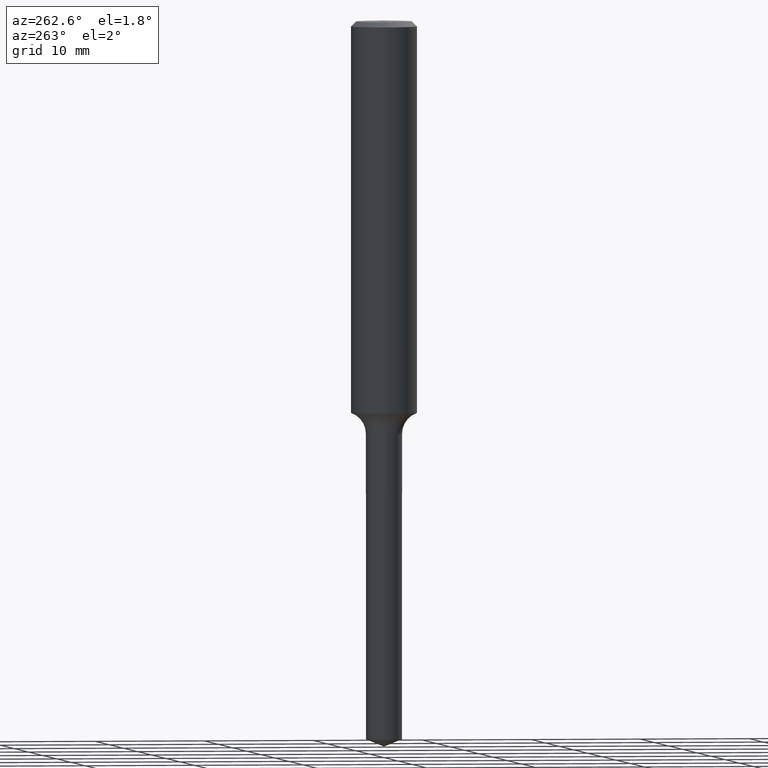
[diagram: clean part render]
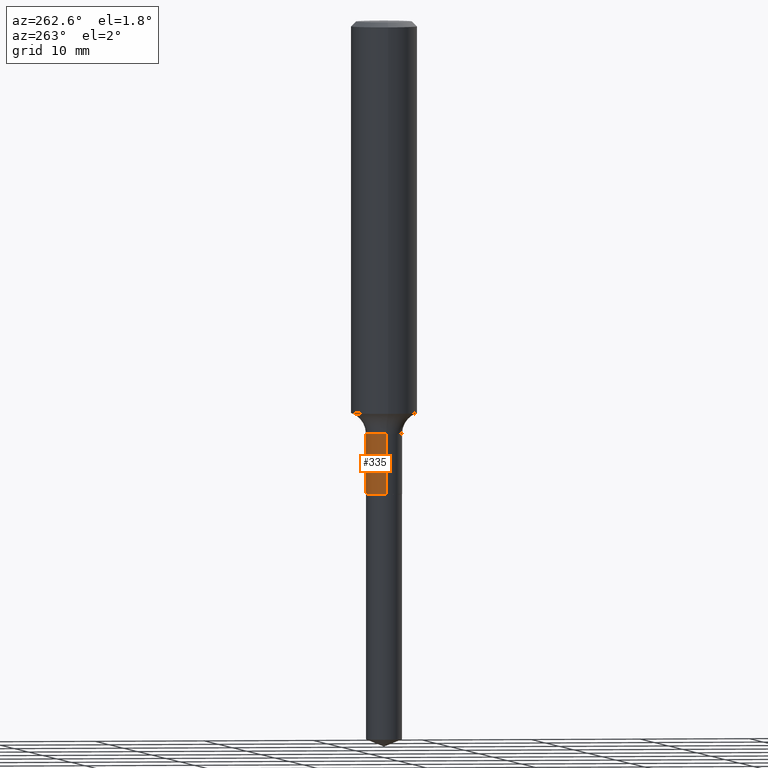
[diagram: same view with one face highlighted and labeled with its STEP entity id]
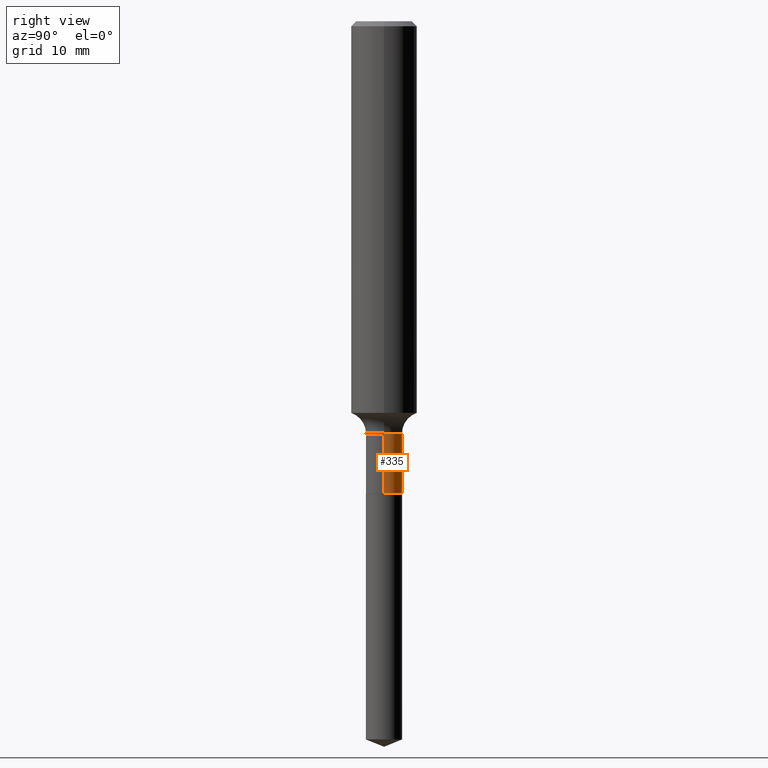
[diagram: same view with one face highlighted and labeled with its STEP entity id]
A machine part, auxiliary view. The second image highlights one B-rep face of the part: STEP entity #335.
A second angle (right view) of the same face is appended — the face is thin or edge-on in the first view.
In plain terms, the highlighted cylindrical surface (edge-blend (fillet) strip) has radius 1.6497 mm, axis along (-0, 0, 1).
Its self-contained STEP definition (entity closure, byte-faithful):
#6 = DIRECTION ( 'NONE',  ( -2.445468806185136597E-29, 3.491481338843145583E-15, 1.000000000000000000 ) ) ;
#14 = CARTESIAN_POINT ( 'NONE',  ( 0.06494999999999999385, -6.361129851238325562E-15, -1.692000000000000171 ) ) ;
#38 = DIRECTION ( 'NONE',  ( 1.000000000000000000, -6.982962677686271444E-15, 0.000000000000000000 ) ) ;
#40 = EDGE_LOOP ( 'NONE', ( #172, #466, #94, #151 ) ) ;
#44 = CARTESIAN_POINT ( 'NONE',  ( 3.610734692332354436E-29, -5.155172196801903565E-15, -1.476499999999999924 ) ) ;
#49 = EDGE_CURVE ( 'NONE', #83, #492, #290, .T. ) ;
#50 = DIRECTION ( 'NONE',  ( 1.000000000000000000, -6.982962677686268288E-15, 0.000000000000000000 ) ) ;
#83 = VERTEX_POINT ( 'NONE', #14 ) ;
#86 = AXIS2_PLACEMENT_3D ( 'NONE', #252, #430, #50 ) ;
#94 = ORIENTED_EDGE ( 'NONE', *, *, #455, .F. ) ;
#104 = FACE_OUTER_BOUND ( 'NONE', #40, .T. ) ;
#118 = CIRCLE ( 'NONE', #305, 0.06494999999999996609 ) ;
#139 = EDGE_CURVE ( 'NONE', #492, #248, #249, .T. ) ;
#151 = ORIENTED_EDGE ( 'NONE', *, *, #366, .F. ) ;
#155 = VERTEX_POINT ( 'NONE', #331 ) ;
#172 = ORIENTED_EDGE ( 'NONE', *, *, #49, .T. ) ;
#195 = CARTESIAN_POINT ( 'NONE',  ( 0.06494999999999997997, -4.535434259157228974E-16, 3.167076815879459014E-30 ) ) ;
#220 = DIRECTION ( 'NONE',  ( -2.445468806185136597E-29, 3.491481338843145583E-15, 1.000000000000000000 ) ) ;
#231 = LINE ( 'NONE', #195, #271 ) ;
#248 = VERTEX_POINT ( 'NONE', #253 ) ;
#249 = LINE ( 'NONE', #284, #312 ) ;
#252 = CARTESIAN_POINT ( 'NONE',  ( 4.137733220065251539E-29, -5.907586425322602368E-15, -1.692000000000000171 ) ) ;
#253 = CARTESIAN_POINT ( 'NONE',  ( -0.06494999999999996609, -5.069881804186068235E-15, -1.476499999999999924 ) ) ;
#256 = DIRECTION ( 'NONE',  ( 1.000000000000000000, -6.982962677686266711E-15, 4.876176775795935232E-29 ) ) ;
#271 = VECTOR ( 'NONE', #450, 39.37007874015748143 ) ;
#284 = CARTESIAN_POINT ( 'NONE',  ( -0.06494999999999997997, 4.614975068761849284E-16, -3.194848341120560204E-30 ) ) ;
#290 = CIRCLE ( 'NONE', #86, 0.06494999999999999385 ) ;
#305 = AXIS2_PLACEMENT_3D ( 'NONE', #44, #6, #38 ) ;
#312 = VECTOR ( 'NONE', #404, 39.37007874015748143 ) ;
#331 = CARTESIAN_POINT ( 'NONE',  ( 0.06494999999999996609, -5.608715622717626758E-15, -1.476499999999999924 ) ) ;
#335 = ADVANCED_FACE ( 'NONE', ( #104 ), #411, .T. ) ;
#366 = EDGE_CURVE ( 'NONE', #83, #155, #231, .T. ) ;
#404 = DIRECTION ( 'NONE',  ( -2.445468806185136877E-29, 3.491481338843145188E-15, 1.000000000000000000 ) ) ;
#411 = CYLINDRICAL_SURFACE ( 'NONE', #419, 0.06494999999999997997 ) ;
#416 = CARTESIAN_POINT ( 'NONE',  ( -0.06494999999999999385, -5.069881804186068235E-15, -1.692000000000000171 ) ) ;
#419 = AXIS2_PLACEMENT_3D ( 'NONE', #486, #220, #256 ) ;
#430 = DIRECTION ( 'NONE',  ( -2.445468806185136597E-29, 3.491481338843145583E-15, 1.000000000000000000 ) ) ;
#450 = DIRECTION ( 'NONE',  ( -2.445468806185136877E-29, 3.491481338843145188E-15, 1.000000000000000000 ) ) ;
#455 = EDGE_CURVE ( 'NONE', #155, #248, #118, .T. ) ;
#466 = ORIENTED_EDGE ( 'NONE', *, *, #139, .T. ) ;
#486 = CARTESIAN_POINT ( 'NONE',  ( 0.000000000000000000, 0.000000000000000000, 0.000000000000000000 ) ) ;
#492 = VERTEX_POINT ( 'NONE', #416 ) ;